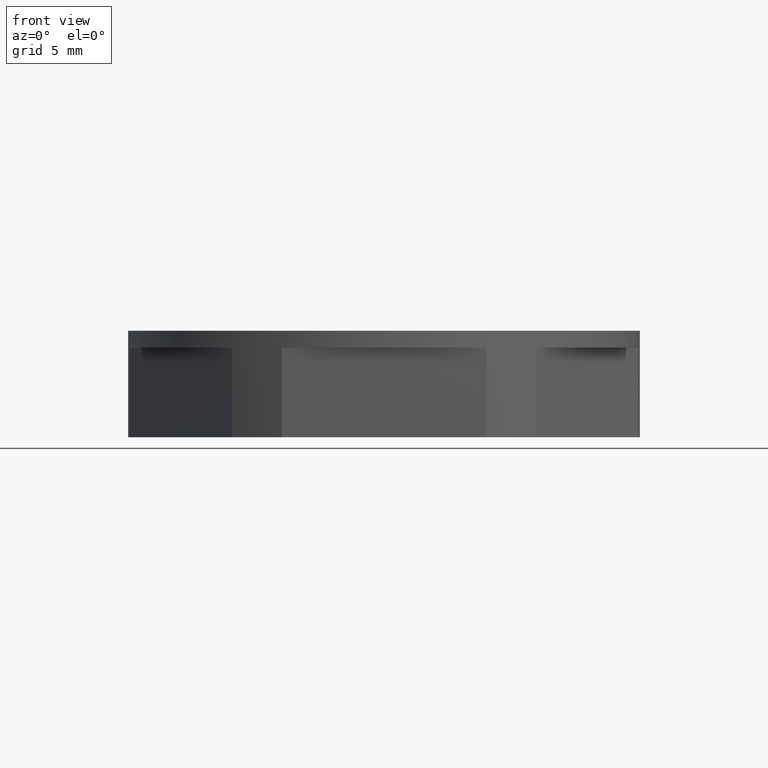
[diagram: clean part render]
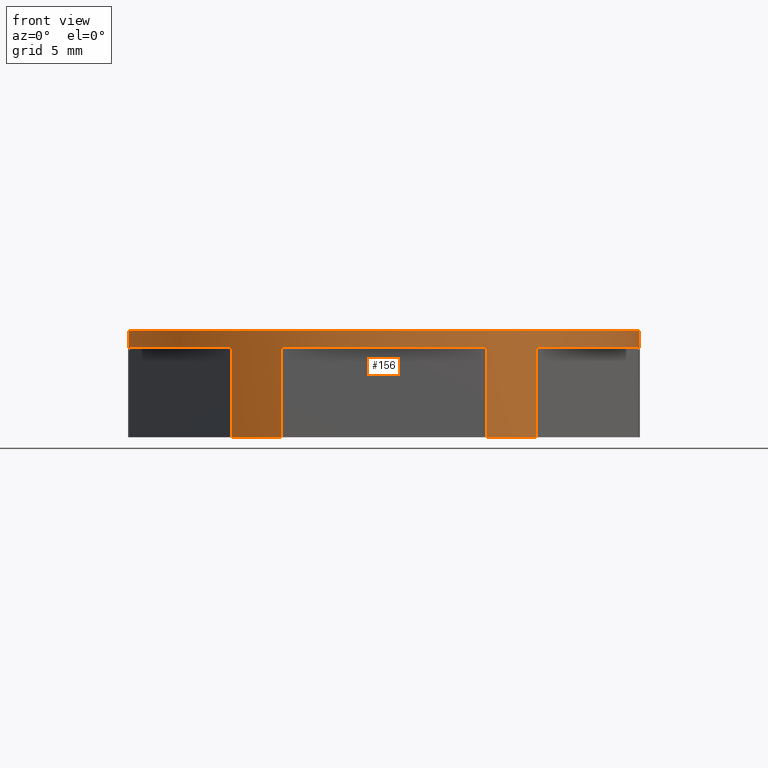
[diagram: same view with one face highlighted and labeled with its STEP entity id]
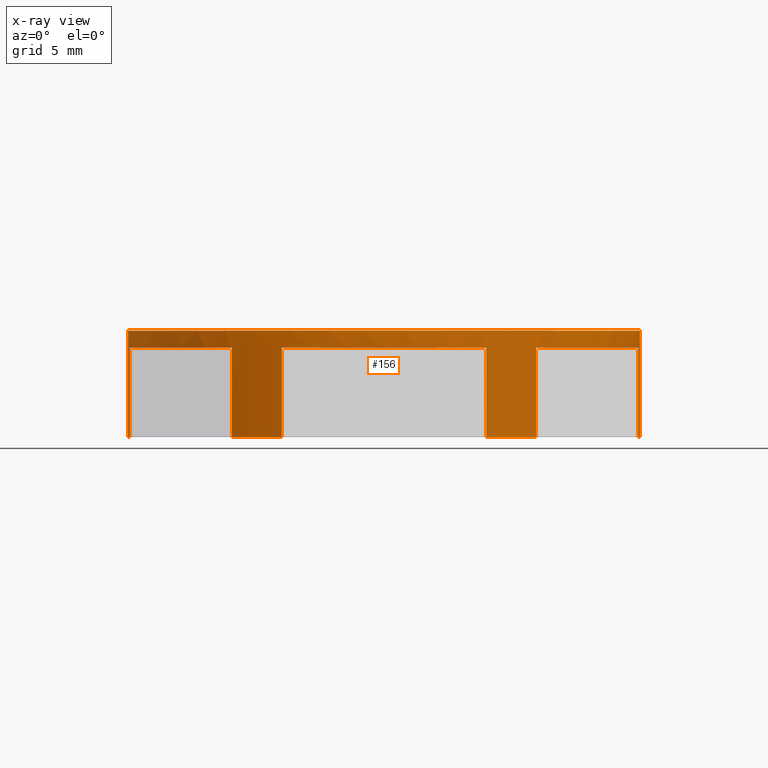
[diagram: x-ray of the same camera — body ghosted, the highlighted face saturated]
A machine part, front view. The second image highlights one B-rep face of the part: STEP entity #156.
The next image is the same camera in x-ray: the body ghosted, the highlighted face saturated — about 0% of this face is hidden behind the body in this view.
In plain terms, the highlighted cylindrical surface (partial cylindrical patch) has radius 12 mm, axis along (0, 0, 1).
Its self-contained STEP definition (entity closure, byte-faithful):
#13 = AXIS2_PLACEMENT_3D ( 'NONE', #1084, #1085, #1093 ) ;
#45 = VECTOR ( 'NONE', #566, 1000.000000000000000 ) ;
#52 = CIRCLE ( 'NONE', #70, 12.00000000000000200 ) ;
#54 = CIRCLE ( 'NONE', #60, 12.00000000000000200 ) ;
#60 = AXIS2_PLACEMENT_3D ( 'NONE', #567, #550, #551 ) ;
#67 = CIRCLE ( 'NONE', #71, 12.00000000000000200 ) ;
#69 = CIRCLE ( 'NONE', #74, 12.00000000000000200 ) ;
#70 = AXIS2_PLACEMENT_3D ( 'NONE', #616, #587, #609 ) ;
#71 = AXIS2_PLACEMENT_3D ( 'NONE', #581, #593, #611 ) ;
#74 = AXIS2_PLACEMENT_3D ( 'NONE', #595, #624, #608 ) ;
#78 = VECTOR ( 'NONE', #507, 1000.000000000000000 ) ;
#81 = VECTOR ( 'NONE', #640, 1000.000000000000000 ) ;
#82 = VECTOR ( 'NONE', #614, 1000.000000000000000 ) ;
#86 = CIRCLE ( 'NONE', #88, 12.00000000000000200 ) ;
#87 = CIRCLE ( 'NONE', #101, 12.00000000000000200 ) ;
#88 = AXIS2_PLACEMENT_3D ( 'NONE', #662, #632, #635 ) ;
#89 = CIRCLE ( 'NONE', #108, 12.00000000000000200 ) ;
#90 = CIRCLE ( 'NONE', #94, 12.00000000000000200 ) ;
#94 = AXIS2_PLACEMENT_3D ( 'NONE', #633, #661, #666 ) ;
#97 = VECTOR ( 'NONE', #822, 1000.000000000000000 ) ;
#100 = VECTOR ( 'NONE', #694, 1000.000000000000000 ) ;
#101 = AXIS2_PLACEMENT_3D ( 'NONE', #714, #720, #675 ) ;
#104 = VECTOR ( 'NONE', #742, 1000.000000000000000 ) ;
#106 = VECTOR ( 'NONE', #657, 1000.000000000000000 ) ;
#108 = AXIS2_PLACEMENT_3D ( 'NONE', #722, #715, #716 ) ;
#156 = ADVANCED_FACE ( 'NONE', ( #1068 ), #1101, .T. ) ;
#185 = EDGE_CURVE ( 'NONE', #2503, #1520, #496, .T. ) ;
#196 = EDGE_CURVE ( 'NONE', #1517, #2502, #573, .T. ) ;
#197 = EDGE_CURVE ( 'NONE', #1492, #1498, #54, .T. ) ;
#201 = EDGE_CURVE ( 'NONE', #1504, #1517, #69, .T. ) ;
#203 = EDGE_CURVE ( 'NONE', #1515, #1506, #52, .T. ) ;
#207 = EDGE_CURVE ( 'NONE', #1520, #2502, #67, .T. ) ;
#208 = EDGE_CURVE ( 'NONE', #1541, #1515, #592, .T. ) ;
#218 = EDGE_CURVE ( 'NONE', #1513, #1492, #655, .T. ) ;
#222 = EDGE_CURVE ( 'NONE', #2503, #1553, #90, .T. ) ;
#225 = EDGE_CURVE ( 'NONE', #1553, #1511, #636, .T. ) ;
#226 = EDGE_CURVE ( 'NONE', #1512, #1541, #86, .T. ) ;
#228 = EDGE_CURVE ( 'NONE', #1498, #1512, #665, .T. ) ;
#229 = EDGE_CURVE ( 'NONE', #1570, #1575, #87, .T. ) ;
#231 = EDGE_CURVE ( 'NONE', #1511, #1513, #89, .T. ) ;
#236 = EDGE_CURVE ( 'NONE', #1575, #1504, #725, .T. ) ;
#243 = EDGE_CURVE ( 'NONE', #1506, #1570, #784, .T. ) ;
#496 = LINE ( 'NONE', #504, #78 ) ;
#504 = CARTESIAN_POINT ( 'NONE',  ( -12.00000000000000200, 1.469576158976824100E-015, 4.200000000000000200 ) ) ;
#507 = DIRECTION ( 'NONE',  ( 0.0000000000000000000, 0.0000000000000000000, 1.000000000000000000 ) ) ;
#537 = CARTESIAN_POINT ( 'NONE',  ( 12.00000000000000200, 0.0000000000000000000, 4.200000000000000200 ) ) ;
#550 = DIRECTION ( 'NONE',  ( 0.0000000000000000000, 0.0000000000000000000, 1.000000000000000000 ) ) ;
#551 = DIRECTION ( 'NONE',  ( 1.000000000000000000, 0.0000000000000000000, 0.0000000000000000000 ) ) ;
#566 = DIRECTION ( 'NONE',  ( 0.0000000000000000000, 0.0000000000000000000, 1.000000000000000000 ) ) ;
#567 = CARTESIAN_POINT ( 'NONE',  ( 0.0000000000000000000, 0.0000000000000000000, 0.0000000000000000000 ) ) ;
#573 = LINE ( 'NONE', #537, #45 ) ;
#581 = CARTESIAN_POINT ( 'NONE',  ( 0.0000000000000000000, 0.0000000000000000000, 5.000000000000000000 ) ) ;
#587 = DIRECTION ( 'NONE',  ( 0.0000000000000000000, 0.0000000000000000000, 1.000000000000000000 ) ) ;
#592 = LINE ( 'NONE', #603, #82 ) ;
#593 = DIRECTION ( 'NONE',  ( 0.0000000000000000000, 0.0000000000000000000, 1.000000000000000000 ) ) ;
#595 = CARTESIAN_POINT ( 'NONE',  ( 0.0000000000000000000, 0.0000000000000000000, 0.0000000000000000000 ) ) ;
#603 = CARTESIAN_POINT ( 'NONE',  ( 4.795831523312671200, -11.00000000000002300, 4.200000000000000200 ) ) ;
#608 = DIRECTION ( 'NONE',  ( 1.000000000000000000, 0.0000000000000000000, 0.0000000000000000000 ) ) ;
#609 = DIRECTION ( 'NONE',  ( 1.000000000000000000, 0.0000000000000000000, 0.0000000000000000000 ) ) ;
#611 = DIRECTION ( 'NONE',  ( 1.000000000000000000, 0.0000000000000000000, 0.0000000000000000000 ) ) ;
#614 = DIRECTION ( 'NONE',  ( -0.0000000000000000000, -0.0000000000000000000, -1.000000000000000000 ) ) ;
#616 = CARTESIAN_POINT ( 'NONE',  ( 0.0000000000000000000, 0.0000000000000000000, 0.0000000000000000000 ) ) ;
#624 = DIRECTION ( 'NONE',  ( 0.0000000000000000000, 0.0000000000000000000, 1.000000000000000000 ) ) ;
#632 = DIRECTION ( 'NONE',  ( 0.0000000000000000000, 0.0000000000000000000, 1.000000000000000000 ) ) ;
#633 = CARTESIAN_POINT ( 'NONE',  ( 0.0000000000000000000, 0.0000000000000000000, 0.0000000000000000000 ) ) ;
#635 = DIRECTION ( 'NONE',  ( 1.000000000000000000, 0.0000000000000000000, 0.0000000000000000000 ) ) ;
#636 = LINE ( 'NONE', #654, #81 ) ;
#640 = DIRECTION ( 'NONE',  ( 0.0000000000000000000, 0.0000000000000000000, 1.000000000000000000 ) ) ;
#654 = CARTESIAN_POINT ( 'NONE',  ( -11.92419520328518500, -1.346688068540968300, 4.200000000000000200 ) ) ;
#655 = LINE ( 'NONE', #656, #106 ) ;
#656 = CARTESIAN_POINT ( 'NONE',  ( -7.128363679972480300, -9.653311931459029400, 4.200000000000000200 ) ) ;
#657 = DIRECTION ( 'NONE',  ( -0.0000000000000000000, -0.0000000000000000000, -1.000000000000000000 ) ) ;
#661 = DIRECTION ( 'NONE',  ( 0.0000000000000000000, 0.0000000000000000000, 1.000000000000000000 ) ) ;
#662 = CARTESIAN_POINT ( 'NONE',  ( 0.0000000000000000000, 0.0000000000000000000, 4.200000000000000200 ) ) ;
#665 = LINE ( 'NONE', #719, #100 ) ;
#666 = DIRECTION ( 'NONE',  ( 1.000000000000000000, 0.0000000000000000000, 0.0000000000000000000 ) ) ;
#675 = DIRECTION ( 'NONE',  ( 1.000000000000000000, 0.0000000000000000000, 0.0000000000000000000 ) ) ;
#684 = CARTESIAN_POINT ( 'NONE',  ( 11.92419520328518000, -1.346688068541009900, 4.200000000000000200 ) ) ;
#694 = DIRECTION ( 'NONE',  ( 0.0000000000000000000, 0.0000000000000000000, 1.000000000000000000 ) ) ;
#714 = CARTESIAN_POINT ( 'NONE',  ( 0.0000000000000000000, 0.0000000000000000000, 4.200000000000000200 ) ) ;
#715 = DIRECTION ( 'NONE',  ( 0.0000000000000000000, 0.0000000000000000000, 1.000000000000000000 ) ) ;
#716 = DIRECTION ( 'NONE',  ( 1.000000000000000000, 0.0000000000000000000, 0.0000000000000000000 ) ) ;
#719 = CARTESIAN_POINT ( 'NONE',  ( -4.795831523312674700, -11.00000000000002100, 4.200000000000000200 ) ) ;
#720 = DIRECTION ( 'NONE',  ( 0.0000000000000000000, 0.0000000000000000000, 1.000000000000000000 ) ) ;
#722 = CARTESIAN_POINT ( 'NONE',  ( 0.0000000000000000000, 0.0000000000000000000, 4.200000000000000200 ) ) ;
#725 = LINE ( 'NONE', #684, #104 ) ;
#742 = DIRECTION ( 'NONE',  ( -0.0000000000000000000, -0.0000000000000000000, -1.000000000000000000 ) ) ;
#784 = LINE ( 'NONE', #814, #97 ) ;
#814 = CARTESIAN_POINT ( 'NONE',  ( 7.128363679972511400, -9.653311931459004600, 4.200000000000000200 ) ) ;
#822 = DIRECTION ( 'NONE',  ( 0.0000000000000000000, 0.0000000000000000000, 1.000000000000000000 ) ) ;
#1068 = FACE_OUTER_BOUND ( 'NONE', #1746, .T. ) ;
#1084 = CARTESIAN_POINT ( 'NONE',  ( 0.0000000000000000000, 0.0000000000000000000, 4.200000000000000200 ) ) ;
#1085 = DIRECTION ( 'NONE',  ( 0.0000000000000000000, 0.0000000000000000000, 1.000000000000000000 ) ) ;
#1093 = DIRECTION ( 'NONE',  ( 1.000000000000000000, 0.0000000000000000000, 0.0000000000000000000 ) ) ;
#1101 = CYLINDRICAL_SURFACE ( 'NONE', #13, 12.00000000000000200 ) ;
#1492 = VERTEX_POINT ( 'NONE', #2548 ) ;
#1498 = VERTEX_POINT ( 'NONE', #2567 ) ;
#1504 = VERTEX_POINT ( 'NONE', #2535 ) ;
#1506 = VERTEX_POINT ( 'NONE', #2691 ) ;
#1511 = VERTEX_POINT ( 'NONE', #2741 ) ;
#1512 = VERTEX_POINT ( 'NONE', #2615 ) ;
#1513 = VERTEX_POINT ( 'NONE', #2630 ) ;
#1515 = VERTEX_POINT ( 'NONE', #2642 ) ;
#1517 = VERTEX_POINT ( 'NONE', #2622 ) ;
#1520 = VERTEX_POINT ( 'NONE', #2637 ) ;
#1541 = VERTEX_POINT ( 'NONE', #2625 ) ;
#1553 = VERTEX_POINT ( 'NONE', #2607 ) ;
#1570 = VERTEX_POINT ( 'NONE', #2648 ) ;
#1575 = VERTEX_POINT ( 'NONE', #2610 ) ;
#1669 = ORIENTED_EDGE ( 'NONE', *, *, #222, .T. ) ;
#1676 = ORIENTED_EDGE ( 'NONE', *, *, #208, .T. ) ;
#1687 = ORIENTED_EDGE ( 'NONE', *, *, #229, .T. ) ;
#1689 = ORIENTED_EDGE ( 'NONE', *, *, #196, .T. ) ;
#1690 = ORIENTED_EDGE ( 'NONE', *, *, #243, .T. ) ;
#1691 = ORIENTED_EDGE ( 'NONE', *, *, #201, .T. ) ;
#1693 = ORIENTED_EDGE ( 'NONE', *, *, #203, .T. ) ;
#1694 = ORIENTED_EDGE ( 'NONE', *, *, #218, .T. ) ;
#1695 = ORIENTED_EDGE ( 'NONE', *, *, #207, .F. ) ;
#1696 = ORIENTED_EDGE ( 'NONE', *, *, #231, .T. ) ;
#1715 = ORIENTED_EDGE ( 'NONE', *, *, #185, .F. ) ;
#1719 = ORIENTED_EDGE ( 'NONE', *, *, #228, .T. ) ;
#1720 = ORIENTED_EDGE ( 'NONE', *, *, #225, .T. ) ;
#1721 = ORIENTED_EDGE ( 'NONE', *, *, #226, .T. ) ;
#1722 = ORIENTED_EDGE ( 'NONE', *, *, #236, .T. ) ;
#1723 = ORIENTED_EDGE ( 'NONE', *, *, #197, .T. ) ;
#1746 = EDGE_LOOP ( 'NONE', ( #1715, #1669, #1720, #1696, #1694, #1723, #1719, #1721, #1676, #1693, #1690, #1687, #1722, #1691, #1689, #1695 ) ) ;
#2502 = VERTEX_POINT ( 'NONE', #2646 ) ;
#2503 = VERTEX_POINT ( 'NONE', #2612 ) ;
#2535 = CARTESIAN_POINT ( 'NONE',  ( 11.92419520328518200, -1.346688068541012300, 0.0000000000000000000 ) ) ;
#2548 = CARTESIAN_POINT ( 'NONE',  ( -7.128363679972484800, -9.653311931459025900, 0.0000000000000000000 ) ) ;
#2567 = CARTESIAN_POINT ( 'NONE',  ( -4.795831523312672900, -11.00000000000002300, 0.0000000000000000000 ) ) ;
#2607 = CARTESIAN_POINT ( 'NONE',  ( -11.92419520328518500, -1.346688068540971000, 0.0000000000000000000 ) ) ;
#2610 = CARTESIAN_POINT ( 'NONE',  ( 11.92419520328518200, -1.346688068541012300, 4.200000000000000200 ) ) ;
#2612 = CARTESIAN_POINT ( 'NONE',  ( -12.00000000000000200, 1.469576158976824100E-015, 0.0000000000000000000 ) ) ;
#2615 = CARTESIAN_POINT ( 'NONE',  ( -4.795831523312672900, -11.00000000000002300, 4.200000000000000200 ) ) ;
#2622 = CARTESIAN_POINT ( 'NONE',  ( 12.00000000000000200, 0.0000000000000000000, 0.0000000000000000000 ) ) ;
#2625 = CARTESIAN_POINT ( 'NONE',  ( 4.795831523312671200, -11.00000000000002300, 4.200000000000000200 ) ) ;
#2630 = CARTESIAN_POINT ( 'NONE',  ( -7.128363679972481200, -9.653311931459027700, 4.200000000000000200 ) ) ;
#2637 = CARTESIAN_POINT ( 'NONE',  ( -12.00000000000000200, 1.469576158976824100E-015, 5.000000000000000000 ) ) ;
#2642 = CARTESIAN_POINT ( 'NONE',  ( 4.795831523312671200, -11.00000000000002300, 0.0000000000000000000 ) ) ;
#2646 = CARTESIAN_POINT ( 'NONE',  ( 12.00000000000000200, 0.0000000000000000000, 5.000000000000000000 ) ) ;
#2648 = CARTESIAN_POINT ( 'NONE',  ( 7.128363679972511400, -9.653311931459006300, 4.200000000000000200 ) ) ;
#2691 = CARTESIAN_POINT ( 'NONE',  ( 7.128363679972511400, -9.653311931459006300, 0.0000000000000000000 ) ) ;
#2741 = CARTESIAN_POINT ( 'NONE',  ( -11.92419520328518500, -1.346688068540969700, 4.200000000000000200 ) ) ;